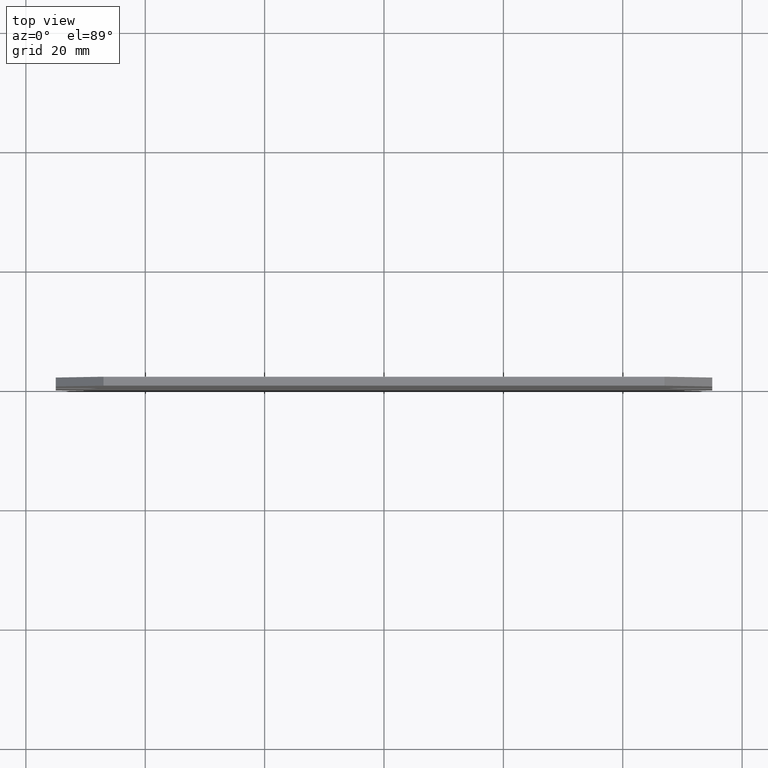
[diagram: clean part render]
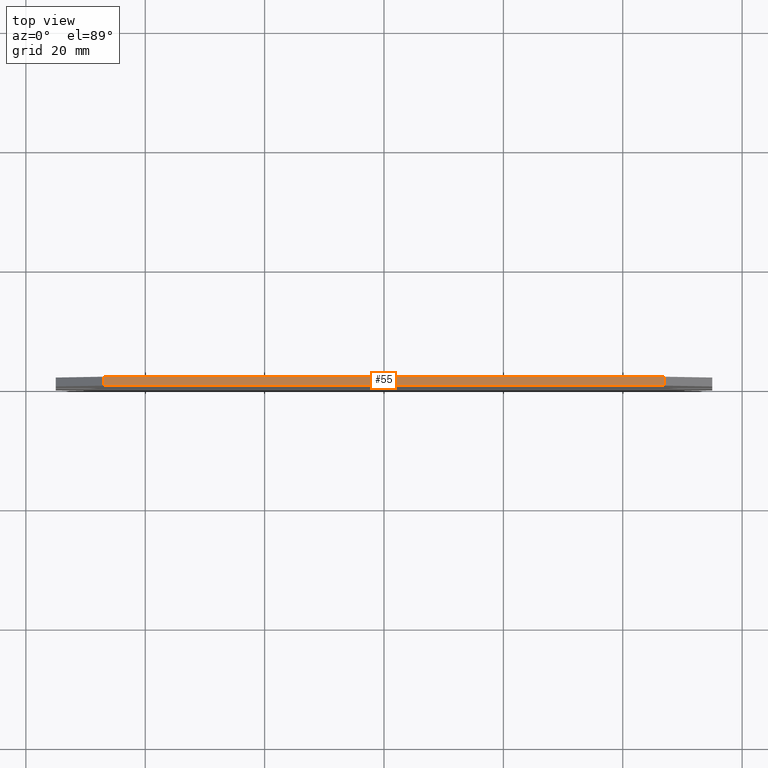
[diagram: same view with one face highlighted and labeled with its STEP entity id]
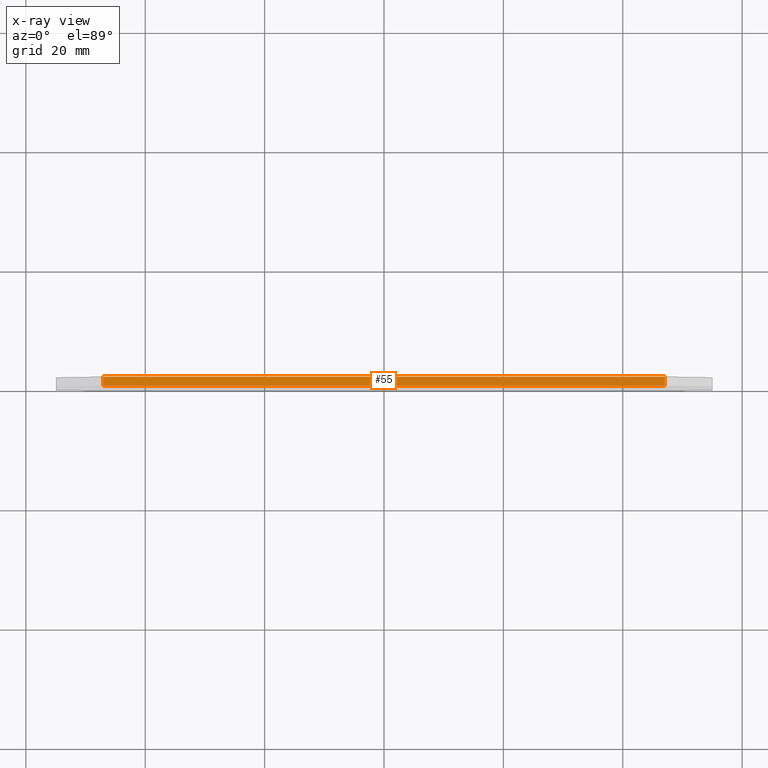
[diagram: x-ray of the same camera — body ghosted, the highlighted face saturated]
A machine part, top view. The second image highlights one B-rep face of the part: STEP entity #55.
The next image is the same camera in x-ray: the body ghosted, the highlighted face saturated — about 0% of this face is hidden behind the body in this view.
In plain terms, the highlighted planar face has unit normal (0, 0, -1).
Its self-contained STEP definition (entity closure, byte-faithful):
#36 = ORIENTED_EDGE ( 'NONE', *, *, #68, .T. ) ;
#39 = VERTEX_POINT ( 'NONE', #368 ) ;
#40 = ORIENTED_EDGE ( 'NONE', *, *, #42, .F. ) ;
#41 = VERTEX_POINT ( 'NONE', #367 ) ;
#42 = EDGE_CURVE ( 'NONE', #41, #39, #366, .T. ) ;
#43 = EDGE_CURVE ( 'NONE', #64, #41, #362, .T. ) ;
#44 = ORIENTED_EDGE ( 'NONE', *, *, #43, .F. ) ;
#45 = ORIENTED_EDGE ( 'NONE', *, *, #47, .T. ) ;
#46 = EDGE_LOOP ( 'NONE', ( #45, #40, #44, #36 ) ) ;
#47 = EDGE_CURVE ( 'NONE', #62, #39, #358, .T. ) ;
#55 = ADVANCED_FACE ( 'NONE', ( #275 ), #274, .F. ) ;
#62 = VERTEX_POINT ( 'NONE', #299 ) ;
#64 = VERTEX_POINT ( 'NONE', #282 ) ;
#68 = EDGE_CURVE ( 'NONE', #64, #62, #295, .T. ) ;
#248 = CARTESIAN_POINT ( 'NONE',  ( -46.99999999999997900, 1.500000000000000000, 26.99999999999997900 ) ) ;
#249 = AXIS2_PLACEMENT_3D ( 'NONE', #248, #278, #251 ) ;
#251 = DIRECTION ( 'NONE',  ( -1.000000000000000000, 0.0000000000000000000, -1.107270303814983800E-016 ) ) ;
#274 = PLANE ( 'NONE',  #249 ) ;
#275 = FACE_OUTER_BOUND ( 'NONE', #46, .T. ) ;
#278 = DIRECTION ( 'NONE',  ( 1.107270303814983800E-016, 0.0000000000000000000, -1.000000000000000000 ) ) ;
#282 = CARTESIAN_POINT ( 'NONE',  ( -46.99999999999997900, 1.500000000000000000, 26.99999999999997900 ) ) ;
#293 = VECTOR ( 'NONE', #298, 1000.000000000000000 ) ;
#294 = CARTESIAN_POINT ( 'NONE',  ( -46.99999999999997900, 1.500000000000000000, 26.99999999999997900 ) ) ;
#295 = LINE ( 'NONE', #294, #293 ) ;
#298 = DIRECTION ( 'NONE',  ( -0.0000000000000000000, -1.000000000000000000, -0.0000000000000000000 ) ) ;
#299 = CARTESIAN_POINT ( 'NONE',  ( -46.99999999999997900, 0.0000000000000000000, 26.99999999999997900 ) ) ;
#355 = DIRECTION ( 'NONE',  ( 1.000000000000000000, 0.0000000000000000000, 1.107270303814983800E-016 ) ) ;
#356 = VECTOR ( 'NONE', #355, 1000.000000000000000 ) ;
#357 = CARTESIAN_POINT ( 'NONE',  ( -46.99999999999997900, 0.0000000000000000000, 26.99999999999997900 ) ) ;
#358 = LINE ( 'NONE', #357, #356 ) ;
#359 = DIRECTION ( 'NONE',  ( 1.000000000000000000, 0.0000000000000000000, 1.107270303814983800E-016 ) ) ;
#360 = VECTOR ( 'NONE', #359, 1000.000000000000000 ) ;
#361 = CARTESIAN_POINT ( 'NONE',  ( -46.99999999999997900, 1.500000000000000000, 26.99999999999997900 ) ) ;
#362 = LINE ( 'NONE', #361, #360 ) ;
#363 = DIRECTION ( 'NONE',  ( -0.0000000000000000000, -1.000000000000000000, -0.0000000000000000000 ) ) ;
#364 = VECTOR ( 'NONE', #363, 1000.000000000000000 ) ;
#365 = CARTESIAN_POINT ( 'NONE',  ( 46.99999999999997900, 1.500000000000000000, 26.99999999999998900 ) ) ;
#366 = LINE ( 'NONE', #365, #364 ) ;
#367 = CARTESIAN_POINT ( 'NONE',  ( 46.99999999999997900, 1.500000000000000000, 26.99999999999998900 ) ) ;
#368 = CARTESIAN_POINT ( 'NONE',  ( 46.99999999999997900, 0.0000000000000000000, 26.99999999999998900 ) ) ;